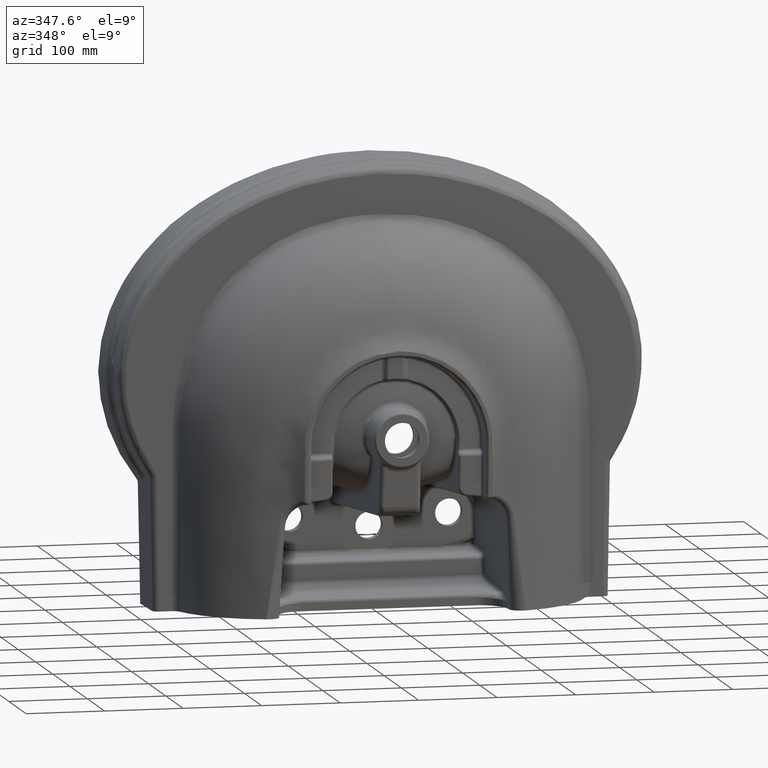
[diagram: clean part render]
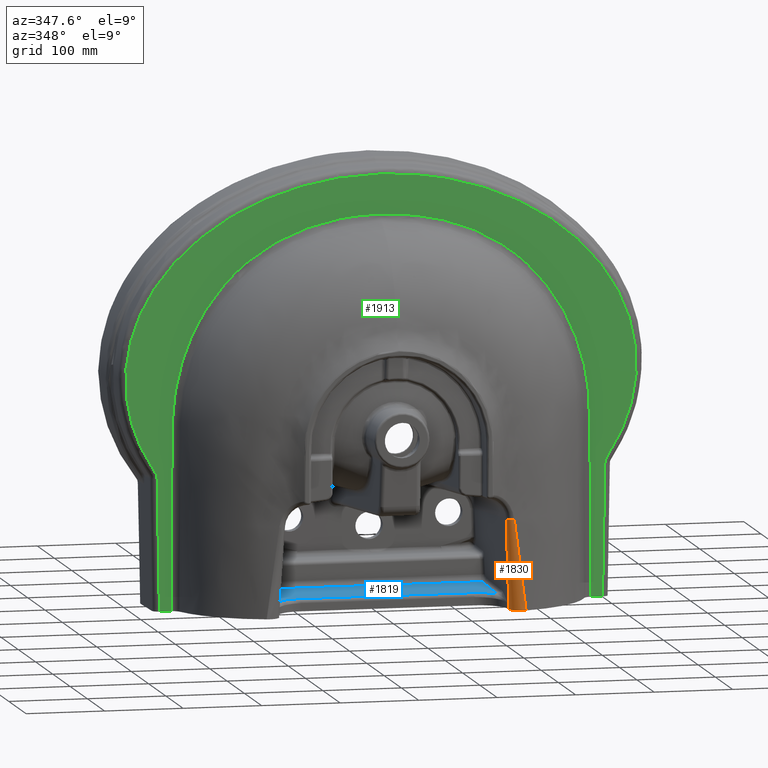
[diagram: same view with three faces highlighted in distinct colors, each labeled with its STEP entity id]
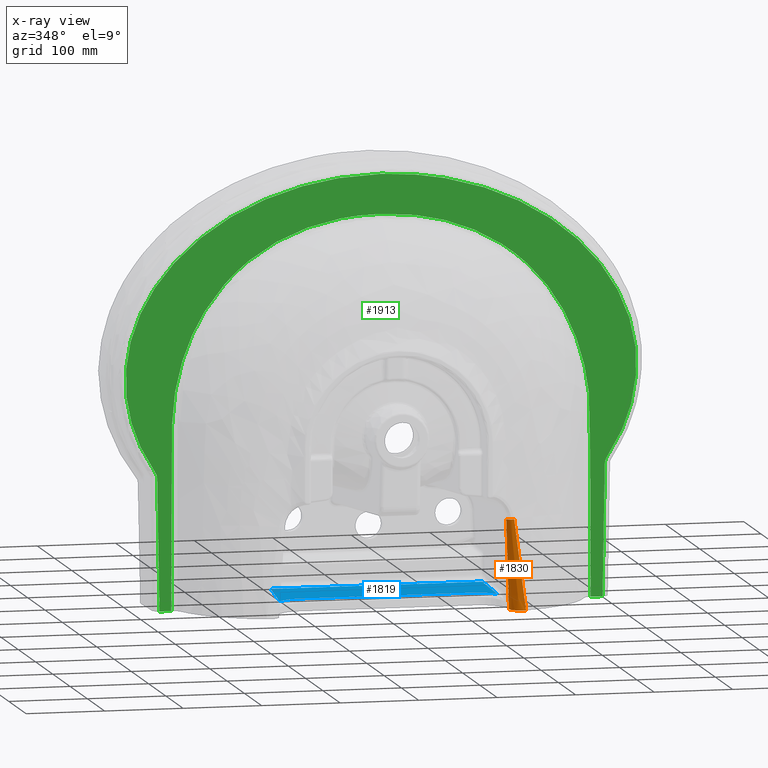
[diagram: x-ray of the same camera — body ghosted, the three highlighted faces saturated]
A machine part, auxiliary view with three faces highlighted in distinct colors.
The next image is the same camera in x-ray (body ghosted, the three faces saturated) — at least one of them is partly hidden behind the body in this view.
Their STEP definitions:

[orange] entity #1830 — the highlighted face is a freeform B-spline surface patch.
#762=(
BOUNDED_SURFACE()
B_SPLINE_SURFACE(3,3,((#23025,#23026,#23027,#23028,#23029,#23030,#23031,
#23032,#23033,#23034),(#23035,#23036,#23037,#23038,#23039,#23040,#23041,
#23042,#23043,#23044),(#23045,#23046,#23047,#23048,#23049,#23050,#23051,
#23052,#23053,#23054),(#23055,#23056,#23057,#23058,#23059,#23060,#23061,
#23062,#23063,#23064)),.UNSPECIFIED.,.F.,.F.,.F.)
B_SPLINE_SURFACE_WITH_KNOTS((4,4),(4,1,1,1,1,1,1,4),(0.,1.),(0.,0.167802733748811,
0.322576298791,0.461073070911718,0.592204922344896,0.731428360898146,0.87335193496553,
1.),.UNSPECIFIED.)
GEOMETRIC_REPRESENTATION_ITEM()
RATIONAL_B_SPLINE_SURFACE(((1.224964134067,1.224964134067,1.224964134067,
1.224964134067,1.224964134067,1.224964134067,1.224964134067,1.224964134067,
1.224964134067,1.224964134067),(0.9250119553111,0.9250119553111,0.9250119553111,
0.9250119553111,0.9250119553111,0.9250119553111,0.9250119553111,0.9250119553111,
0.9250119553111,0.9250119553111),(0.9250119553111,0.9250119553111,0.9250119553111,
0.9250119553111,0.9250119553111,0.9250119553111,0.9250119553111,0.9250119553111,
0.9250119553111,0.9250119553111),(1.224964134067,1.224964134067,1.224964134067,
1.224964134067,1.224964134067,1.224964134067,1.224964134067,1.224964134067,
1.224964134067,1.224964134067)))
REPRESENTATION_ITEM('')
SURFACE()
);
#1146=B_SPLINE_CURVE_WITH_KNOTS('',3,(#18747,#18748,#18749,#18750,#18751,
#18752,#18753,#18754,#18755,#18756,#18757,#18758,#18759,#18760,#18761,#18762,
#18763,#18764,#18765,#18766,#18767,#18768,#18769,#18770,#18771,#18772,#18773,
#18774,#18775,#18776,#18777,#18778,#18779,#18780,#18781,#18782,#18783,#18784,
#18785,#18786,#18787,#18788,#18789,#18790,#18791,#18792,#18793,#18794,#18795),
 .UNSPECIFIED.,.F.,.F.,(4,1,1,1,2,2,1,2,2,1,1,1,2,2,1,1,2,2,1,1,1,2,2,1,
1,1,2,2,1,1,2,2,4),(0.,0.0312499999999971,0.0468749999999957,0.054687499999995,
0.0585937499999949,0.0624999999999948,0.0937499999999947,0.109374999999995,
0.124999999999995,0.187499999999996,0.218749999999996,0.234374999999996,
0.242187499999997,0.249999999999997,0.312499999999998,0.343749999999998,
0.359374999999997,0.374999999999997,0.437499999999994,0.468749999999992,
0.484374999999991,0.492187499999991,0.499999999999991,0.624999999999994,
0.687499999999996,0.718749999999996,0.734374999999997,0.749999999999997,
0.812499999999998,0.843749999999998,0.859374999999998,0.874999999999998,
1.),.UNSPECIFIED.);
#1230=B_SPLINE_CURVE_WITH_KNOTS('',3,(#22784,#22785,#22786,#22787,#22788,
#22789,#22790,#22791,#22792,#22793),.UNSPECIFIED.,.F.,.F.,(4,2,2,2,4),(0.,
0.25,0.5,0.75,1.),.UNSPECIFIED.);
#1233=B_SPLINE_CURVE_WITH_KNOTS('',3,(#23017,#23018,#23019,#23020,#23021,
#23022),.UNSPECIFIED.,.F.,.F.,(4,2,4),(0.,0.5,1.),.UNSPECIFIED.);
#1830=ADVANCED_FACE('',(#2295),#762,.T.);
#2295=FACE_OUTER_BOUND('',#2776,.T.);
#2776=EDGE_LOOP('',(#4193,#4194,#4195,#4196));
#4193=ORIENTED_EDGE('',*,*,#6548,.T.);
#4194=ORIENTED_EDGE('',*,*,#6549,.F.);
#4195=ORIENTED_EDGE('',*,*,#6400,.F.);
#4196=ORIENTED_EDGE('',*,*,#6540,.F.);
#5601=VERTEX_POINT('',#18746);
#5602=VERTEX_POINT('',#18796);
#5682=VERTEX_POINT('',#22783);
#5685=VERTEX_POINT('',#23023);
#6400=EDGE_CURVE('',#5601,#5602,#1146,.T.);
#6540=EDGE_CURVE('',#5682,#5601,#1230,.T.);
#6548=EDGE_CURVE('',#5682,#5685,#1233,.T.);
#6549=EDGE_CURVE('',#5602,#5685,#7173,.T.);
#7173=CIRCLE('',#7386,7.583068045292);
#7386=AXIS2_PLACEMENT_3D('',#23024,#7894,#7895);
#7894=DIRECTION('',(-0.103827573950703,-0.0679699160282218,0.992270086923227));
#7895=DIRECTION('',(-0.993041771684531,-0.0486555755416496,-0.107241198512332));
#18746=CARTESIAN_POINT('',(146.4426951448,-2.325559688682,-224.9999999813));
#18747=CARTESIAN_POINT('',(146.442694252337,-2.3255597355182,-225.000000028072));
#18748=CARTESIAN_POINT('',(146.380238594408,-2.43560419446462,-223.698079604201));
#18749=CARTESIAN_POINT('',(146.279830149559,-2.61277753346392,-221.604755861296));
#18750=CARTESIAN_POINT('',(146.150918287475,-2.84066640081085,-218.916769390486));
#18751=CARTESIAN_POINT('',(146.083520187327,-2.95990749411291,-217.511332295726));
#18752=CARTESIAN_POINT('',(146.054004822455,-3.01214581830565,-216.895835570967));
#18753=CARTESIAN_POINT('',(146.034187809249,-3.04722358965454,-216.482578523063));
#18754=CARTESIAN_POINT('',(146.022673412957,-3.06760779421642,-216.242458574782));
#18755=CARTESIAN_POINT('',(145.946058466316,-3.20325489077508,-214.644725054299));
#18756=CARTESIAN_POINT('',(145.843908505166,-3.38417581402186,-212.514418473602));
#18757=CARTESIAN_POINT('',(145.741763495573,-3.5651839290215,-210.384119062826));
#18758=CARTESIAN_POINT('',(145.673667922857,-3.68587538163299,-208.963921048958));
#18759=CARTESIAN_POINT('',(145.642006000594,-3.74200161135181,-208.303572328129));
#18760=CARTESIAN_POINT('',(145.459846000925,-4.06497304540332,-204.504337812801));
#18761=CARTESIAN_POINT('',(145.255840900559,-4.42586929198221,-200.250297086643));
#18762=CARTESIAN_POINT('',(145.043362023799,-4.80024333299581,-195.821070784203));
#18763=CARTESIAN_POINT('',(144.943504353836,-4.97576245850382,-193.739912935836));
#18764=CARTESIAN_POINT('',(144.90207573137,-5.04848467765037,-192.876585708575));
#18765=CARTESIAN_POINT('',(144.874760543459,-5.09641054303384,-192.307389238156));
#18766=CARTESIAN_POINT('',(144.863473804598,-5.11620620802536,-192.072202599683));
#18767=CARTESIAN_POINT('',(144.723320328572,-5.36187722191097,-189.151906806865));
#18768=CARTESIAN_POINT('',(144.544010757008,-5.67452499022452,-185.417399533199));
#18769=CARTESIAN_POINT('',(144.348049284004,-6.01318194873932,-181.33911016825));
#18770=CARTESIAN_POINT('',(144.26690144425,-6.15272805142045,-179.650979537771));
#18771=CARTESIAN_POINT('',(144.213433028564,-6.24451598791337,-178.538827488292));
#18772=CARTESIAN_POINT('',(144.189232284653,-6.28599398324058,-178.035514868294));
#18773=CARTESIAN_POINT('',(144.047620006905,-6.5282226993604,-175.0908305022));
#18774=CARTESIAN_POINT('',(143.882706610783,-6.80806876884894,-171.663865334035));
#18775=CARTESIAN_POINT('',(143.699094988697,-7.11560616767221,-167.852387429019));
#18776=CARTESIAN_POINT('',(143.609486012669,-7.26463744652217,-165.993310507638));
#18777=CARTESIAN_POINT('',(143.571552916159,-7.3274928330518,-165.206562262288));
#18778=CARTESIAN_POINT('',(143.546368796344,-7.36917083261624,-164.684285433536));
#18779=CARTESIAN_POINT('',(143.535519143767,-7.38710713474885,-164.459300812753));
#18780=CARTESIAN_POINT('',(143.294500786097,-7.78496340897915,-159.461994315098));
#18781=CARTESIAN_POINT('',(142.956535327935,-8.32999571341199,-152.467448934854));
#18782=CARTESIAN_POINT('',(142.566259860581,-8.93673423755649,-144.412978217074));
#18783=CARTESIAN_POINT('',(142.372126518696,-9.23282037520528,-140.412200914643));
#18784=CARTESIAN_POINT('',(142.289141741844,-9.35815376467831,-138.703251654271));
#18785=CARTESIAN_POINT('',(142.233866385456,-9.44136254221159,-137.565212054807));
#18786=CARTESIAN_POINT('',(142.207936971693,-9.48027476336003,-137.031483744392));
#18787=CARTESIAN_POINT('',(142.061565969921,-9.69915642941869,-134.019376605023));
#18788=CARTESIAN_POINT('',(141.887816667759,-9.95556548860939,-130.447281479927));
#18789=CARTESIAN_POINT('',(141.688426973506,-10.2437737458591,-126.354095691072));
#18790=CARTESIAN_POINT('',(141.603685209884,-10.3649482178648,-124.615785750938));
#18791=CARTESIAN_POINT('',(141.547348692467,-10.4452104541953,-123.460448577695));
#18792=CARTESIAN_POINT('',(141.516756212357,-10.4886210935874,-122.833239069292));
#18793=CARTESIAN_POINT('',(141.287192764048,-10.8132554084428,-118.127827708142));
#18794=CARTESIAN_POINT('',(141.081274511219,-11.096255001765,-113.915285412736));
#18795=CARTESIAN_POINT('',(140.873494404058,-11.3736903529822,-109.672788698502));
#18796=CARTESIAN_POINT('',(140.8734944041,-11.37369035298,-109.6727886985));
#22783=CARTESIAN_POINT('',(165.2146465389,-16.05876747466,-225.0000000021));
#22784=CARTESIAN_POINT('',(165.214646265909,-16.0587664004184,-225.));
#22785=CARTESIAN_POINT('',(163.046509644496,-16.6097424307373,-225.));
#22786=CARTESIAN_POINT('',(160.790471183995,-16.6757440554652,-225.));
#22787=CARTESIAN_POINT('',(156.447251037119,-15.8497734535013,-225.));
#22788=CARTESIAN_POINT('',(154.356592738578,-14.9462490908817,-225.));
#22789=CARTESIAN_POINT('',(150.789818502523,-12.3486492757186,-225.));
#22790=CARTESIAN_POINT('',(149.291787306456,-10.6440647221677,-225.));
#22791=CARTESIAN_POINT('',(147.171161938715,-6.72970945611492,-225.));
#22792=CARTESIAN_POINT('',(146.559955466697,-4.55991915908059,-225.));
#22793=CARTESIAN_POINT('',(146.442696403992,-2.32555962259967,-225.));
#23017=CARTESIAN_POINT('',(165.214646265926,-16.0587664004838,-225.000000009759));
#23018=CARTESIAN_POINT('',(162.474021882174,-16.6177548600635,-205.720510874029));
#23019=CARTESIAN_POINT('',(159.720015791523,-17.1151693475282,-186.448710023501));
#23020=CARTESIAN_POINT('',(154.297618325607,-17.9370732299819,-147.881735983285));
#23021=CARTESIAN_POINT('',(151.821161290817,-18.2170208947345,-128.575138323553));
#23022=CARTESIAN_POINT('',(149.666804613506,-18.4722504620406,-109.238920303153));
#23023=CARTESIAN_POINT('',(149.6668046135,-18.47225046204,-109.2389203031));
#23024=CARTESIAN_POINT('',(148.4037970085,-11.00473308663,-108.8595563392));
#23025=CARTESIAN_POINT('',(146.4861411146,-2.26234831553,-225.8921956136));
#23026=CARTESIAN_POINT('',(146.1693952192,-2.722377505435,-219.3888587252));
#23027=CARTESIAN_POINT('',(145.5635790788,-3.637065831077,-206.8887913384));
#23028=CARTESIAN_POINT('',(144.7019256552,-4.964428796162,-189.0235586471));
#23029=CARTESIAN_POINT('',(143.9105520934,-6.164556221426,-172.578435749));
#23030=CARTESIAN_POINT('',(143.1496754984,-7.272031749702,-156.7336062935));
#23031=CARTESIAN_POINT('',(142.3807212832,-8.431023038698,-140.756188055));
#23032=CARTESIAN_POINT('',(141.6145931132,-9.596534108796,-124.9506602381));
#23033=CARTESIAN_POINT('',(141.1063298217,-10.35071571768,-114.5383909936));
#23034=CARTESIAN_POINT('',(140.865685617,-10.7054434364,-109.6278165543));
#23035=CARTESIAN_POINT('',(147.0748096347,-12.48719392639,-226.7270982576));
#23036=CARTESIAN_POINT('',(146.6816621746,-12.66518182205,-220.211845427));
#23037=CARTESIAN_POINT('',(145.9433430132,-13.02480503972,-207.6806135887));
#23038=CARTESIAN_POINT('',(144.9084760767,-13.54174531659,-189.7534865349));
#23039=CARTESIAN_POINT('',(143.9631358185,-13.99456516981,-173.2404037419));
#23040=CARTESIAN_POINT('',(143.0539101093,-14.38992070788,-157.3245038995));
#23041=CARTESIAN_POINT('',(142.2076780098,-14.84977811029,-141.2714861539));
#23042=CARTESIAN_POINT('',(141.4242236862,-15.3561277187,-125.3914804122));
#23043=CARTESIAN_POINT('',(140.9269343678,-15.70340320621,-114.9317448127));
#23044=CARTESIAN_POINT('',(140.6983514143,-15.87373976618,-109.9993469792));
#23045=CARTESIAN_POINT('',(155.3420566924,-18.57723287897,-226.3332550314));
#23046=CARTESIAN_POINT('',(154.6827209739,-18.63496458192,-219.832584581));
#23047=CARTESIAN_POINT('',(153.4318923755,-18.74311527508,-207.3292453254));
#23048=CARTESIAN_POINT('',(151.6616448439,-18.8749735686,-189.4417728618));
#23049=CARTESIAN_POINT('',(150.0418880185,-18.96674160957,-172.9645851743));
#23050=CARTESIAN_POINT('',(148.4889909905,-19.01848906153,-157.0822710223));
#23051=CARTESIAN_POINT('',(147.0541679298,-19.08786767926,-141.0575509379));
#23052=CARTESIAN_POINT('',(145.7509988117,-19.18313023256,-125.200898377));
#23053=CARTESIAN_POINT('',(144.9466451298,-19.25988974782,-114.754428535));
#23054=CARTESIAN_POINT('',(144.583406916,-19.30217889771,-109.8276745761));
#23055=CARTESIAN_POINT('',(165.214776884,-16.0587330817,-224.9999824884));
#23056=CARTESIAN_POINT('',(164.2950076482,-16.24633368486,-218.5296805494));
#23057=CARTESIAN_POINT('',(162.5281517436,-16.59133571894,-206.0928010675));
#23058=CARTESIAN_POINT('',(160.0005658493,-17.04633329355,-188.3174019535));
#23059=CARTESIAN_POINT('',(157.6813678307,-17.42853331948,-171.9535958894));
#23060=CARTESIAN_POINT('',(155.462317118,-17.75759849577,-156.184851515));
#23061=CARTESIAN_POINT('',(153.3599679223,-18.03199847125,-140.271538847));
#23062=CARTESIAN_POINT('',(151.4164769588,-18.26623221637,-124.5189153663));
#23063=CARTESIAN_POINT('',(150.2125895276,-18.40758647431,-114.1366983918));
#23064=CARTESIAN_POINT('',(149.6668970637,-18.47223536898,-109.2389095957));

[blue] entity #1819 — the highlighted planar face has unit normal (0, -0.0698, 0.9976).
#327=PLANE('',#7374);
#424=LINE('',#22228,#573);
#425=LINE('',#22372,#574);
#573=VECTOR('',#7856,1.);
#574=VECTOR('',#7861,1.);
#1215=B_SPLINE_CURVE_WITH_KNOTS('',3,(#22310,#22311,#22312,#22313),
 .UNSPECIFIED.,.F.,.F.,(4,4),(0.,1.),.UNSPECIFIED.);
#1216=B_SPLINE_CURVE_WITH_KNOTS('',3,(#22315,#22316,#22317,#22318,#22319,
#22320,#22321,#22322,#22323,#22324,#22325,#22326,#22327,#22328,#22329,#22330,
#22331,#22332,#22333,#22334,#22335,#22336,#22337,#22338,#22339,#22340,#22341,
#22342,#22343,#22344,#22345,#22346,#22347,#22348,#22349,#22350,#22351,#22352,
#22353,#22354,#22355,#22356,#22357,#22358,#22359,#22360,#22361,#22362,#22363,
#22364,#22365,#22366,#22367,#22368,#22369,#22370),.UNSPECIFIED.,.F.,.F.,
(4,2,2,2,2,2,2,2,2,2,2,2,1,2,2,2,2,2,2,2,2,2,1,2,2,2,2,2,4),(0.,0.0625000000000069,
0.0937500000000104,0.125000000000014,0.156250000000017,0.187500000000021,
0.218750000000024,0.250000000000028,0.312500000000034,0.375000000000041,
0.500000000000054,0.531250000000057,0.546875000000058,0.554687500000059,
0.56250000000006,0.593750000000054,0.609375000000051,0.617187500000049,
0.625000000000048,0.750000000000029,0.812500000000021,0.843750000000018,
0.859375000000017,0.867187500000016,0.875000000000015,0.906250000000013,
0.92187500000001,0.937500000000008,1.),.UNSPECIFIED.);
#1217=B_SPLINE_CURVE_WITH_KNOTS('',3,(#22374,#22375,#22376,#22377,#22378,
#22379,#22380,#22381,#22382,#22383,#22384,#22385,#22386,#22387,#22388,#22389,
#22390,#22391,#22392,#22393,#22394,#22395,#22396,#22397,#22398,#22399,#22400,
#22401,#22402,#22403,#22404,#22405,#22406,#22407,#22408,#22409,#22410,#22411,
#22412,#22413,#22414,#22415,#22416,#22417,#22418,#22419,#22420,#22421,#22422,
#22423),.UNSPECIFIED.,.F.,.F.,(4,2,2,2,2,2,2,2,2,2,2,2,2,2,2,2,2,2,2,2,
2,2,2,2,4),(0.,0.0625000000000186,0.125000000000037,0.250000000000074,0.281250000000083,
0.312500000000091,0.375000000000111,0.390625000000115,0.398437500000118,
0.406250000000121,0.437500000000113,0.468750000000106,0.500000000000099,
0.625000000000074,0.640625000000071,0.656250000000068,0.687500000000062,
0.750000000000051,0.781250000000046,0.812500000000041,0.87500000000003,
0.890625000000026,0.906250000000023,0.937500000000016,1.),.UNSPECIFIED.);
#1218=B_SPLINE_CURVE_WITH_KNOTS('',3,(#22425,#22426,#22427,#22428),
 .UNSPECIFIED.,.F.,.F.,(4,4),(0.,1.),.UNSPECIFIED.);
#1819=ADVANCED_FACE('',(#2284),#327,.T.);
#2284=FACE_OUTER_BOUND('',#2765,.T.);
#2765=EDGE_LOOP('',(#4133,#4134,#4135,#4136,#4137,#4138));
#4133=ORIENTED_EDGE('',*,*,#6516,.F.);
#4134=ORIENTED_EDGE('',*,*,#6517,.F.);
#4135=ORIENTED_EDGE('',*,*,#6518,.F.);
#4136=ORIENTED_EDGE('',*,*,#6519,.F.);
#4137=ORIENTED_EDGE('',*,*,#6511,.F.);
#4138=ORIENTED_EDGE('',*,*,#6515,.F.);
#5661=VERTEX_POINT('',#22161);
#5662=VERTEX_POINT('',#22229);
#5663=VERTEX_POINT('',#22309);
#5664=VERTEX_POINT('',#22371);
#5665=VERTEX_POINT('',#22373);
#5666=VERTEX_POINT('',#22424);
#6511=EDGE_CURVE('',#5662,#5661,#424,.T.);
#6515=EDGE_CURVE('',#5663,#5662,#1215,.T.);
#6516=EDGE_CURVE('',#5664,#5663,#1216,.T.);
#6517=EDGE_CURVE('',#5665,#5664,#425,.T.);
#6518=EDGE_CURVE('',#5666,#5665,#1217,.T.);
#6519=EDGE_CURVE('',#5661,#5666,#1218,.T.);
#7374=AXIS2_PLACEMENT_3D('',#22429,#7862,#7863);
#7856=DIRECTION('',(1.,0.,0.));
#7861=DIRECTION('',(-1.,0.,0.));
#7862=DIRECTION('',(0.,-0.0697564737441317,0.997564050259824));
#7863=DIRECTION('',(0.,-0.997564050259824,-0.0697564737441317));
#22161=CARTESIAN_POINT('',(134.826822921,99.50588864518,-205.6333612136));
#22228=CARTESIAN_POINT('',(-142.0175649187,99.5058952721544,-205.633455983208));
#22229=CARTESIAN_POINT('',(-134.826822921,99.50588863326,-205.6333610426));
#22309=CARTESIAN_POINT('',(-138.7140133822,30.26959319388,-210.4749502529));
#22310=CARTESIAN_POINT('',(-138.714013382366,30.2695917746847,-210.474929957329));
#22311=CARTESIAN_POINT('',(-137.41828322857,53.348359607177,-208.86110529933));
#22312=CARTESIAN_POINT('',(-136.122553074773,76.4271274396653,-207.247280641276));
#22313=CARTESIAN_POINT('',(-134.826822920977,99.5058952721498,-205.633455983165));
#22315=CARTESIAN_POINT('',(-110.590954361281,41.7453155479088,-209.672527697815));
#22316=CARTESIAN_POINT('',(-111.046848433731,41.7452224048725,-209.672555561196));
#22317=CARTESIAN_POINT('',(-111.672877028388,41.7386763711632,-209.673034270685));
#22318=CARTESIAN_POINT('',(-112.865698993236,41.6832978952637,-209.676913987522));
#22319=CARTESIAN_POINT('',(-113.359775445581,41.6522521137299,-209.679082420859));
#22320=CARTESIAN_POINT('',(-114.121141810668,41.5925862755752,-209.68324513956));
#22321=CARTESIAN_POINT('',(-114.43294881041,41.5628401189034,-209.685318948007));
#22322=CARTESIAN_POINT('',(-114.919426772219,41.5131719322859,-209.688781582989));
#22323=CARTESIAN_POINT('',(-115.058297407733,41.497813689844,-209.689852161339));
#22324=CARTESIAN_POINT('',(-115.521785383947,41.4431733588291,-209.693661199404));
#22325=CARTESIAN_POINT('',(-115.815172324973,41.4066615249012,-209.696206421852));
#22326=CARTESIAN_POINT('',(-116.523996858671,41.3070465795645,-209.70315245899));
#22327=CARTESIAN_POINT('',(-117.007102014832,41.2318083403151,-209.708400129606));
#22328=CARTESIAN_POINT('',(-117.739084824376,41.1060261959181,-209.717177315869));
#22329=CARTESIAN_POINT('',(-118.080388832634,41.0421603601221,-209.721635893294));
#22330=CARTESIAN_POINT('',(-119.030951202979,40.8532804765212,-209.734826822824));
#22331=CARTESIAN_POINT('',(-119.55456666496,40.7365878148605,-209.742981223677));
#22332=CARTESIAN_POINT('',(-120.781528176241,40.4350274500067,-209.764061039));
#22333=CARTESIAN_POINT('',(-121.411099006269,40.2650943899621,-209.775943343187));
#22334=CARTESIAN_POINT('',(-123.343633791679,39.6899647444729,-209.816165343952));
#22335=CARTESIAN_POINT('',(-124.554088463069,39.2625213826453,-209.846066502141));
#22336=CARTESIAN_POINT('',(-126.060936896045,38.6488638590973,-209.888989314002));
#22337=CARTESIAN_POINT('',(-126.360812696272,38.5224019575369,-209.897834609035));
#22338=CARTESIAN_POINT('',(-126.808244465899,38.3271589680308,-209.911490247136));
#22339=CARTESIAN_POINT('',(-127.031364689783,38.2281494380082,-209.918415021384));
#22340=CARTESIAN_POINT('',(-127.25356656597,38.1270710853044,-209.925484303586));
#22341=CARTESIAN_POINT('',(-127.401494369277,38.0592274231702,-209.930229157987));
#22342=CARTESIAN_POINT('',(-127.510588489496,38.0086533607876,-209.933766172245));
#22343=CARTESIAN_POINT('',(-127.703199122431,37.9188732904314,-209.940045116464));
#22344=CARTESIAN_POINT('',(-127.92731106177,37.8135460931195,-209.947411308299));
#22345=CARTESIAN_POINT('',(-128.365666360518,37.5994853239115,-209.962381373526));
#22346=CARTESIAN_POINT('',(-128.5287961498,37.518749538291,-209.968027457143));
#22347=CARTESIAN_POINT('',(-128.798456369751,37.3825208480892,-209.97755415092));
#22348=CARTESIAN_POINT('',(-128.892502582688,37.3345882489052,-209.980906130704));
#22349=CARTESIAN_POINT('',(-129.088803736643,37.2334758296992,-209.987976974613));
#22350=CARTESIAN_POINT('',(-129.226745778419,37.1615246608748,-209.993008507805));
#22351=CARTESIAN_POINT('',(-130.427126120936,36.530126890372,-210.037161772383));
#22352=CARTESIAN_POINT('',(-131.568440541057,35.8589321806258,-210.084094140164));
#22353=CARTESIAN_POINT('',(-133.192128735684,34.794392801409,-210.158529431188));
#22354=CARTESIAN_POINT('',(-133.72475127497,34.4264896461088,-210.184254016943));
#22355=CARTESIAN_POINT('',(-134.509781310521,33.855644963055,-210.22416922787));
#22356=CARTESIAN_POINT('',(-134.769139190248,33.662196922674,-210.237695802481));
#22357=CARTESIAN_POINT('',(-135.154581599254,33.3673578484404,-210.258312188192));
#22358=CARTESIAN_POINT('',(-135.346405046283,33.2187724139671,-210.268701946688));
#22359=CARTESIAN_POINT('',(-135.536862925219,33.0684565516195,-210.279212757707));
#22360=CARTESIAN_POINT('',(-135.663529280476,32.9678634845146,-210.286246721665));
#22361=CARTESIAN_POINT('',(-135.764435515165,32.887041348828,-210.291898216177));
#22362=CARTESIAN_POINT('',(-135.890939126481,32.7853231186167,-210.299010878134));
#22363=CARTESIAN_POINT('',(-136.067947559361,32.6425754451162,-210.308992527979));
#22364=CARTESIAN_POINT('',(-136.442389872335,32.3306678675151,-210.330802833482));
#22365=CARTESIAN_POINT('',(-136.585315302189,32.2103507240075,-210.339216089983));
#22366=CARTESIAN_POINT('',(-136.906040873418,31.9354901866548,-210.35843594961));
#22367=CARTESIAN_POINT('',(-137.109439779809,31.7582145714109,-210.370832130829));
#22368=CARTESIAN_POINT('',(-137.953277954825,31.0088720314223,-210.423230815492));
#22369=CARTESIAN_POINT('',(-138.423775967959,30.5536003037018,-210.455066577851));
#22370=CARTESIAN_POINT('',(-138.714013382613,30.2695915308305,-210.474926464221));
#22371=CARTESIAN_POINT('',(-110.5909543631,41.74531283551,-209.6724888751));
#22372=CARTESIAN_POINT('',(112.6647953329,41.7453114787359,-209.672469463882));
#22373=CARTESIAN_POINT('',(110.590954364,41.74531283652,-209.6724888811));
#22374=CARTESIAN_POINT('',(138.714019629478,30.2695709938225,-210.474927900069));
#22375=CARTESIAN_POINT('',(138.470392210221,30.5079705911617,-210.458257327316));
#22376=CARTESIAN_POINT('',(138.029765299457,30.9372343827137,-210.428240201593));
#22377=CARTESIAN_POINT('',(136.703794319534,32.1216749172455,-210.345416692938));
#22378=CARTESIAN_POINT('',(136.226602890364,32.5162055741586,-210.317828923941));
#22379=CARTESIAN_POINT('',(134.800026078651,33.6608190665358,-210.237791774305));
#22380=CARTESIAN_POINT('',(133.732641330075,34.440330813036,-210.183286364066));
#22381=CARTESIAN_POINT('',(132.379382682473,35.3274384938744,-210.121257523528));
#22382=CARTESIAN_POINT('',(132.106579561849,35.5015869667104,-210.109080584475));
#22383=CARTESIAN_POINT('',(131.556837104514,35.8432387846028,-210.085191193597));
#22384=CARTESIAN_POINT('',(131.401509283209,35.9371690018023,-210.078623245796));
#22385=CARTESIAN_POINT('',(130.694254532004,36.3582782248232,-210.049177492825));
#22386=CARTESIAN_POINT('',(130.116306698952,36.6901480349434,-210.025971417658));
#22387=CARTESIAN_POINT('',(129.250924560211,37.1492976765923,-209.99386355976));
#22388=CARTESIAN_POINT('',(129.070693704217,37.2433122731553,-209.987289135128));
#22389=CARTESIAN_POINT('',(128.789413563161,37.3871481317958,-209.97723055806));
#22390=CARTESIAN_POINT('',(128.785206864061,37.3891384565796,-209.977091363613));
#22391=CARTESIAN_POINT('',(128.743861664068,37.4101122786759,-209.975624634384));
#22392=CARTESIAN_POINT('',(128.718958912552,37.4227244175246,-209.974742648258));
#22393=CARTESIAN_POINT('',(128.57322756377,37.4962788795745,-209.969598857399));
#22394=CARTESIAN_POINT('',(128.388829379966,37.5888866026033,-209.963122613246));
#22395=CARTESIAN_POINT('',(127.881328203085,37.8353181835918,-209.945888641153));
#22396=CARTESIAN_POINT('',(127.558209510219,37.9891514925356,-209.93513025573));
#22397=CARTESIAN_POINT('',(126.768267821374,38.346883572323,-209.910110856978));
#22398=CARTESIAN_POINT('',(126.263142711725,38.5663771893324,-209.894758913843));
#22399=CARTESIAN_POINT('',(123.745311846432,39.5924488410124,-209.82298944723));
#22400=CARTESIAN_POINT('',(122.384415501671,39.9794190739434,-209.795921703994));
#22401=CARTESIAN_POINT('',(121.68676053351,40.1812455096134,-209.78180757838));
#22402=CARTESIAN_POINT('',(121.620661045093,40.2001247806549,-209.780487345585));
#22403=CARTESIAN_POINT('',(121.511402234453,40.2311459172943,-209.778318055022));
#22404=CARTESIAN_POINT('',(121.321418079391,40.284554129275,-209.774583323436));
#22405=CARTESIAN_POINT('',(120.889933480799,40.4024683965821,-209.766338340399));
#22406=CARTESIAN_POINT('',(120.594804106153,40.4797204051582,-209.760937166637));
#22407=CARTESIAN_POINT('',(119.686845533408,40.7059696655085,-209.745121078137));
#22408=CARTESIAN_POINT('',(119.051428028082,40.8494887750732,-209.735091540071));
#22409=CARTESIAN_POINT('',(118.052812610328,41.0475579750745,-209.721258975361));
#22410=CARTESIAN_POINT('',(117.712359476455,41.1107014983619,-209.716851042054));
#22411=CARTESIAN_POINT('',(117.016329554067,41.2301394838807,-209.708516611749));
#22412=CARTESIAN_POINT('',(116.5931101439,41.2967042865218,-209.703873727807));
#22413=CARTESIAN_POINT('',(115.50747719354,41.4509763094157,-209.693116201768));
#22414=CARTESIAN_POINT('',(114.880578345455,41.5201238763192,-209.688297286426));
#22415=CARTESIAN_POINT('',(114.221116492621,41.5820687164656,-209.68397815692));
#22416=CARTESIAN_POINT('',(114.095422458236,41.593211638013,-209.68320110694));
#22417=CARTESIAN_POINT('',(113.856473976506,41.6133597018816,-209.681795840561));
#22418=CARTESIAN_POINT('',(113.530036991665,41.6390536405457,-209.68000332409));
#22419=CARTESIAN_POINT('',(112.83281863473,41.6859423150214,-209.676729330941));
#22420=CARTESIAN_POINT('',(112.422370785633,41.7055279994662,-209.675357997019));
#22421=CARTESIAN_POINT('',(111.355403495943,41.7444349295429,-209.672622990888));
#22422=CARTESIAN_POINT('',(110.863342217036,41.7452598876741,-209.67254436239));
#22423=CARTESIAN_POINT('',(110.590954362181,41.7453155497501,-209.672527715745));
#22424=CARTESIAN_POINT('',(138.7140196291,30.26957265589,-210.4749516742));
#22425=CARTESIAN_POINT('',(134.826822921,99.5058952721127,-205.633455983153));
#22426=CARTESIAN_POINT('',(136.122555157099,76.4271205939887,-207.247281119957));
#22427=CARTESIAN_POINT('',(137.418287393199,53.3483459158618,-208.861106256718));
#22428=CARTESIAN_POINT('',(138.714019629298,30.269571237732,-210.474931393436));
#22429=CARTESIAN_POINT('',(0.,37.05323870887,-210.000571154));

[green] entity #1913 — the highlighted planar face has unit normal (0, 1, 0).
#334=PLANE('',#7411);
#427=LINE('',#22739,#576);
#430=LINE('',#22765,#579);
#439=LINE('',#30382,#588);
#440=LINE('',#30650,#589);
#576=VECTOR('',#7871,1.);
#579=VECTOR('',#7880,1.);
#588=VECTOR('',#7949,1.);
#589=VECTOR('',#7950,1.);
#1347=B_SPLINE_CURVE_WITH_KNOTS('',3,(#29980,#29981,#29982,#29983,#29984,
#29985,#29986,#29987,#29988,#29989,#29990,#29991,#29992,#29993,#29994,#29995,
#29996,#29997,#29998,#29999,#30000,#30001,#30002,#30003,#30004,#30005,#30006,
#30007,#30008,#30009,#30010,#30011,#30012,#30013,#30014,#30015,#30016,#30017,
#30018,#30019,#30020,#30021,#30022,#30023,#30024,#30025,#30026,#30027,#30028,
#30029,#30030,#30031,#30032,#30033,#30034,#30035,#30036,#30037,#30038,#30039,
#30040,#30041,#30042,#30043,#30044),.UNSPECIFIED.,.F.,.F.,(4,1,1,1,1,1,
1,1,1,1,1,1,1,1,1,1,1,1,1,1,1,1,1,1,1,1,1,1,1,1,1,1,1,1,1,1,1,1,1,1,1,1,
1,1,1,1,1,1,1,1,1,1,1,1,1,1,1,1,1,1,1,1,4),(0.,0.01612903225806,0.03225806451613,
0.04838709677419,0.06451612903226,0.08064516129032,0.09677419354839,0.1129032258065,
0.1290322580645,0.1451612903226,0.1612903225806,0.1774193548387,0.1935483870968,
0.2096774193548,0.2258064516129,0.241935483871,0.258064516129,0.2741935483871,
0.2903225806452,0.3064516129032,0.3225806451613,0.3387096774194,0.3548387096774,
0.3709677419355,0.3870967741935,0.4032258064516,0.4193548387097,0.4354838709677,
0.4516129032258,0.4677419354839,0.4838709677419,0.5,0.5161290322581,0.5322580645161,
0.5483870967742,0.5645161290323,0.5806451612903,0.5967741935484,0.6129032258065,
0.6290322580645,0.6451612903226,0.6612903225806,0.6774193548387,0.6935483870968,
0.7096774193548,0.7258064516129,0.741935483871,0.758064516129,0.7741935483871,
0.7903225806452,0.8064516129032,0.8225806451613,0.8387096774194,0.8548387096774,
0.8709677419355,0.8870967741935,0.9032258064516,0.9193548387097,0.9354838709677,
0.9516129032258,0.9677419354839,0.9838709677419,1.),.UNSPECIFIED.);
#1348=B_SPLINE_CURVE_WITH_KNOTS('',3,(#30317,#30318,#30319,#30320,#30321,
#30322,#30323,#30324,#30325,#30326,#30327,#30328,#30329,#30330,#30331,#30332,
#30333,#30334,#30335,#30336,#30337,#30338,#30339,#30340,#30341,#30342,#30343,
#30344,#30345,#30346,#30347,#30348,#30349,#30350,#30351,#30352,#30353,#30354,
#30355,#30356,#30357,#30358,#30359,#30360,#30361,#30362,#30363,#30364,#30365,
#30366,#30367,#30368,#30369,#30370,#30371,#30372,#30373,#30374,#30375,#30376,
#30377,#30378,#30379,#30380,#30381),.UNSPECIFIED.,.F.,.F.,(4,1,1,1,1,1,
1,1,1,1,1,1,1,1,1,1,1,1,1,1,1,1,1,1,1,1,1,1,1,1,1,1,1,1,1,1,1,1,1,1,1,1,
1,1,1,1,1,1,1,1,1,1,1,1,1,1,1,1,1,1,1,1,4),(0.,0.01612903225806,0.03225806451613,
0.04838709677419,0.06451612903226,0.08064516129032,0.09677419354839,0.1129032258065,
0.1290322580645,0.1451612903226,0.1612903225806,0.1774193548387,0.1935483870968,
0.2096774193548,0.2258064516129,0.241935483871,0.258064516129,0.2741935483871,
0.2903225806452,0.3064516129032,0.3225806451613,0.3387096774194,0.3548387096774,
0.3709677419355,0.3870967741935,0.4032258064516,0.4193548387097,0.4354838709677,
0.4516129032258,0.4677419354839,0.4838709677419,0.5,0.5161290322581,0.5322580645161,
0.5483870967742,0.5645161290323,0.5806451612903,0.5967741935484,0.6129032258065,
0.6290322580645,0.6451612903226,0.6612903225806,0.6774193548387,0.6935483870968,
0.7096774193548,0.7258064516129,0.741935483871,0.758064516129,0.7741935483871,
0.7903225806452,0.8064516129032,0.8225806451613,0.8387096774194,0.8548387096774,
0.8709677419355,0.8870967741935,0.9032258064516,0.9193548387097,0.9354838709677,
0.9516129032258,0.9677419354839,0.9838709677419,1.),.UNSPECIFIED.);
#1349=B_SPLINE_CURVE_WITH_KNOTS('',3,(#30384,#30385,#30386,#30387),
 .UNSPECIFIED.,.F.,.F.,(4,4),(0.,1.),.UNSPECIFIED.);
#1350=B_SPLINE_CURVE_WITH_KNOTS('',3,(#30389,#30390,#30391,#30392,#30393,
#30394,#30395,#30396,#30397,#30398,#30399,#30400,#30401,#30402,#30403,#30404,
#30405,#30406,#30407,#30408,#30409,#30410,#30411,#30412,#30413,#30414,#30415,
#30416,#30417,#30418,#30419,#30420,#30421,#30422,#30423,#30424,#30425,#30426,
#30427,#30428,#30429,#30430,#30431,#30432,#30433,#30434,#30435,#30436,#30437,
#30438,#30439,#30440,#30441,#30442,#30443,#30444,#30445,#30446,#30447,#30448,
#30449,#30450,#30451,#30452,#30453,#30454,#30455,#30456,#30457,#30458,#30459,
#30460,#30461,#30462,#30463,#30464,#30465,#30466,#30467,#30468,#30469,#30470,
#30471,#30472,#30473,#30474,#30475,#30476,#30477,#30478,#30479,#30480,#30481,
#30482,#30483,#30484,#30485,#30486,#30487,#30488,#30489,#30490,#30491,#30492,
#30493,#30494,#30495,#30496,#30497,#30498,#30499,#30500,#30501,#30502,#30503,
#30504,#30505,#30506,#30507,#30508,#30509,#30510,#30511),.UNSPECIFIED.,
 .F.,.F.,(4,1,1,1,1,2,2,1,2,2,1,1,1,2,2,1,1,1,1,2,2,1,1,1,2,2,1,2,2,2,2,
1,1,2,2,1,2,2,1,1,2,2,1,1,1,2,2,1,1,1,1,1,2,2,1,1,1,1,1,2,2,1,1,1,1,1,2,
2,1,1,1,1,2,2,1,1,1,1,2,2,1,1,1,1,2,2,4),(0.,0.0312500000000017,0.0468750000000024,
0.0546875000000027,0.0585937500000028,0.0605468750000029,0.0625000000000029,
0.093750000000002,0.109375000000002,0.125000000000001,0.15625,0.171875,
0.179687499999999,0.183593749999999,0.187499999999999,0.218749999999998,
0.234374999999998,0.242187499999998,0.246093749999998,0.248046874999998,
0.249999999999998,0.281249999999997,0.296874999999997,0.304687499999996,
0.308593749999996,0.312499999999996,0.343749999999996,0.359374999999996,
0.374999999999996,0.406249999999996,0.437499999999996,0.468749999999997,
0.484374999999997,0.492187499999997,0.499999999999997,0.531249999999996,
0.546874999999996,0.562499999999996,0.593749999999995,0.609374999999995,
0.617187499999995,0.624999999999994,0.656249999999994,0.671874999999993,
0.679687499999993,0.683593749999993,0.687499999999993,0.718749999999992,
0.734374999999992,0.742187499999992,0.746093749999992,0.748046874999992,
0.749023437499992,0.749999999999992,0.781249999999992,0.796874999999992,
0.804687499999993,0.808593749999993,0.810546874999993,0.811523437499993,
0.812499999999993,0.843749999999994,0.859374999999994,0.867187499999995,
0.871093749999995,0.873046874999995,0.874023437499995,0.874999999999995,
0.890624999999995,0.898437499999996,0.902343749999996,0.904296874999996,
0.905273437499996,0.906249999999996,0.921874999999997,0.929687499999997,
0.933593749999997,0.935546874999997,0.936523437499997,0.937499999999997,
0.953124999999998,0.960937499999998,0.964843749999998,0.966796874999998,
0.967773437499999,0.968749999999999,1.),.UNSPECIFIED.);
#1351=B_SPLINE_CURVE_WITH_KNOTS('',3,(#30513,#30514,#30515,#30516,#30517,
#30518,#30519,#30520,#30521,#30522,#30523,#30524,#30525,#30526,#30527,#30528,
#30529,#30530,#30531,#30532,#30533,#30534,#30535,#30536,#30537,#30538,#30539,
#30540,#30541,#30542,#30543,#30544,#30545,#30546,#30547,#30548,#30549,#30550,
#30551,#30552,#30553,#30554,#30555,#30556,#30557,#30558,#30559,#30560,#30561,
#30562,#30563,#30564,#30565,#30566,#30567,#30568,#30569,#30570,#30571,#30572,
#30573,#30574,#30575,#30576,#30577,#30578,#30579,#30580,#30581,#30582,#30583,
#30584,#30585,#30586,#30587,#30588,#30589,#30590,#30591,#30592,#30593,#30594,
#30595,#30596,#30597,#30598,#30599,#30600,#30601,#30602,#30603,#30604,#30605,
#30606,#30607,#30608,#30609,#30610,#30611,#30612,#30613,#30614,#30615,#30616,
#30617,#30618,#30619,#30620,#30621,#30622,#30623,#30624,#30625,#30626,#30627,
#30628,#30629,#30630,#30631,#30632,#30633,#30634,#30635,#30636,#30637,#30638,
#30639,#30640,#30641,#30642,#30643),.UNSPECIFIED.,.F.,.F.,(4,1,1,1,1,2,
2,1,1,1,1,2,2,1,1,1,1,2,2,1,1,1,2,2,1,2,2,1,1,1,2,2,1,1,1,2,2,1,1,1,2,2,
1,1,1,2,2,1,1,2,2,1,2,2,1,2,2,2,2,2,2,1,1,2,2,1,1,1,1,2,2,1,1,1,1,2,2,2,
2,1,1,1,2,2,1,2,2,1,4),(0.,0.0156250000000005,0.0234375000000007,0.0273437500000008,
0.0292968750000009,0.0302734375000009,0.0312500000000009,0.0468750000000011,
0.0546875000000012,0.0585937500000012,0.0605468750000012,0.0615234375000012,
0.0625000000000012,0.0781250000000013,0.0859375000000013,0.0898437500000013,
0.0917968750000013,0.0927734375000013,0.0937500000000013,0.109375000000001,
0.117187500000001,0.121093750000001,0.123046875000001,0.125000000000001,
0.140625,0.1484375,0.15625,0.171874999999999,0.179687499999999,0.183593749999999,
0.185546874999999,0.187499999999999,0.203124999999998,0.210937499999998,
0.214843749999997,0.216796874999997,0.218749999999997,0.234374999999996,
0.242187499999996,0.246093749999996,0.248046874999996,0.249999999999996,
0.281249999999996,0.296874999999997,0.304687499999997,0.308593749999997,
0.312499999999997,0.343749999999996,0.359374999999996,0.367187499999996,
0.374999999999996,0.406249999999997,0.421874999999997,0.437499999999997,
0.468749999999998,0.484374999999998,0.499999999999999,0.562499999999999,
0.59375,0.625,0.65625,0.671875,0.6796875,0.68359375,0.6875,0.71875,0.734375000000001,
0.742187500000001,0.746093750000001,0.748046875000001,0.750000000000001,
0.781250000000001,0.796875000000001,0.804687500000001,0.808593750000001,
0.810546875000001,0.812500000000001,0.843750000000001,0.875000000000002,
0.906250000000002,0.921875000000002,0.929687500000002,0.933593750000002,
0.937500000000002,0.968750000000001,0.976562500000001,0.98046875,0.984375,
1.),.UNSPECIFIED.);
#1352=B_SPLINE_CURVE_WITH_KNOTS('',3,(#30645,#30646,#30647,#30648),
 .UNSPECIFIED.,.F.,.F.,(4,4),(0.,1.),.UNSPECIFIED.);
#1913=ADVANCED_FACE('',(#2378),#334,.F.);
#2378=FACE_OUTER_BOUND('',#2859,.T.);
#2859=EDGE_LOOP('',(#4557,#4558,#4559,#4560,#4561,#4562,#4563,#4564,#4565,
#4566));
#4557=ORIENTED_EDGE('',*,*,#6529,.F.);
#4558=ORIENTED_EDGE('',*,*,#6715,.T.);
#4559=ORIENTED_EDGE('',*,*,#6716,.T.);
#4560=ORIENTED_EDGE('',*,*,#6537,.T.);
#4561=ORIENTED_EDGE('',*,*,#6717,.T.);
#4562=ORIENTED_EDGE('',*,*,#6718,.T.);
#4563=ORIENTED_EDGE('',*,*,#6719,.T.);
#4564=ORIENTED_EDGE('',*,*,#6720,.T.);
#4565=ORIENTED_EDGE('',*,*,#6721,.T.);
#4566=ORIENTED_EDGE('',*,*,#6722,.T.);
#5671=VERTEX_POINT('',#22738);
#5672=VERTEX_POINT('',#22740);
#5679=VERTEX_POINT('',#22764);
#5680=VERTEX_POINT('',#22766);
#5769=VERTEX_POINT('',#29979);
#5770=VERTEX_POINT('',#30383);
#5771=VERTEX_POINT('',#30388);
#5772=VERTEX_POINT('',#30512);
#5773=VERTEX_POINT('',#30644);
#5774=VERTEX_POINT('',#30649);
#6529=EDGE_CURVE('',#5671,#5672,#427,.T.);
#6537=EDGE_CURVE('',#5680,#5679,#430,.T.);
#6715=EDGE_CURVE('',#5671,#5769,#1347,.T.);
#6716=EDGE_CURVE('',#5769,#5680,#1348,.T.);
#6717=EDGE_CURVE('',#5679,#5770,#439,.T.);
#6718=EDGE_CURVE('',#5770,#5771,#1349,.T.);
#6719=EDGE_CURVE('',#5771,#5772,#1350,.T.);
#6720=EDGE_CURVE('',#5772,#5773,#1351,.T.);
#6721=EDGE_CURVE('',#5773,#5774,#1352,.T.);
#6722=EDGE_CURVE('',#5774,#5672,#440,.T.);
#7411=AXIS2_PLACEMENT_3D('',#30651,#7951,#7952);
#7871=DIRECTION('',(-1.,-5.589523695181E-012,0.));
#7880=DIRECTION('',(1.,-5.1390893328E-012,0.));
#7949=DIRECTION('',(0.0174524131949506,-2.08981727528707E-008,0.999847695038436));
#7950=DIRECTION('',(0.0174524065525196,3.23960422050993E-008,-0.999847695154379));
#7951=DIRECTION('',(0.,1.,0.));
#7952=DIRECTION('',(-1.,0.,0.));
#22738=CARTESIAN_POINT('',(-267.0934794786,73.0000000002075,-225.));
#22739=CARTESIAN_POINT('',(-267.0934794786,73.00000000008,-225.));
#22740=CARTESIAN_POINT('',(-282.205557901346,72.9999999999989,-225.));
#22764=CARTESIAN_POINT('',(282.205557901291,73.0000000000006,-225.));
#22765=CARTESIAN_POINT('',(267.0934794786,73.00000000008,-225.));
#22766=CARTESIAN_POINT('',(267.0934794786,73.0000000001925,-225.));
#29979=CARTESIAN_POINT('',(-3.722311809475E-013,73.00000011353,266.2901602595));
#29980=CARTESIAN_POINT('',(-267.0934794786,73.00000000008,-225.));
#29981=CARTESIAN_POINT('',(-267.0655536151,73.0000000008,-218.1900067896));
#29982=CARTESIAN_POINT('',(-267.0121546796,72.99999999963,-205.0892761182));
#29983=CARTESIAN_POINT('',(-266.939433152,73.0000000001,-187.0519150573));
#29984=CARTESIAN_POINT('',(-266.8732272814,72.99999999997,-170.460389152));
#29985=CARTESIAN_POINT('',(-266.8128658847,73.00000000001,-155.2134647534));
#29986=CARTESIAN_POINT('',(-266.7576568514,73.,-141.1920196425));
#29987=CARTESIAN_POINT('',(-266.7070746747,73.,-128.2819096562));
#29988=CARTESIAN_POINT('',(-266.6607524714,73.,-116.3670987032));
#29989=CARTESIAN_POINT('',(-266.6182596107,73.,-105.3339237459));
#29990=CARTESIAN_POINT('',(-266.5790993305,73.,-95.06053179512));
#29991=CARTESIAN_POINT('',(-266.5426369906,73.,-85.46778474693));
#29992=CARTESIAN_POINT('',(-266.5086700415,73.,-76.55658236017));
#29993=CARTESIAN_POINT('',(-266.4770183856,73.,-68.31127787235));
#29994=CARTESIAN_POINT('',(-266.4475191604,73.,-60.72245034958));
#29995=CARTESIAN_POINT('',(-266.4206756425,73.,-53.75398669099));
#29996=CARTESIAN_POINT('',(-266.3968800914,73.,-47.36447884237));
#29997=CARTESIAN_POINT('',(-266.3762722051,73.,-41.51428185541));
#29998=CARTESIAN_POINT('',(-266.3573119118,73.,-36.16092239304));
#29999=CARTESIAN_POINT('',(-266.3389111013,73.,-31.27006631581));
#30000=CARTESIAN_POINT('',(-266.3202055423,73.,-26.73610688598));
#30001=CARTESIAN_POINT('',(-266.3004482186,73.,-22.44040545731));
#30002=CARTESIAN_POINT('',(-266.2812686941,73.,-18.26631256166));
#30003=CARTESIAN_POINT('',(-266.2640452194,73.,-14.10614036039));
#30004=CARTESIAN_POINT('',(-266.2503432542,73.,-9.951754815336));
#30005=CARTESIAN_POINT('',(-266.2429018292,73.,-5.794812860725));
#30006=CARTESIAN_POINT('',(-266.2395695556,73.,-1.629369192869));
#30007=CARTESIAN_POINT('',(-266.2236765896,73.,2.544684763412));
#30008=CARTESIAN_POINT('',(-266.1808713884,73.,6.73040202673));
#30009=CARTESIAN_POINT('',(-266.0966144361,73.,10.92701085289));
#30010=CARTESIAN_POINT('',(-265.9553943474,73.,15.12329046822));
#30011=CARTESIAN_POINT('',(-265.7491403612,73.,19.33834585434));
#30012=CARTESIAN_POINT('',(-265.4745241541,73.,23.64107727649));
#30013=CARTESIAN_POINT('',(-265.1278829482,73.,28.02665016813));
#30014=CARTESIAN_POINT('',(-264.712627402,73.,32.4368270055));
#30015=CARTESIAN_POINT('',(-264.219112293,73.,36.95869488679));
#30016=CARTESIAN_POINT('',(-263.6242346873,73.,41.72280453692));
#30017=CARTESIAN_POINT('',(-262.8975045853,73.,46.84366813579));
#30018=CARTESIAN_POINT('',(-261.9965776588,73.,52.44734306826));
#30019=CARTESIAN_POINT('',(-260.8742657671,73.,58.61132104209));
#30020=CARTESIAN_POINT('',(-259.4879819551,73.,65.34453094156));
#30021=CARTESIAN_POINT('',(-257.7869151429,73.,72.6653365241));
#30022=CARTESIAN_POINT('',(-255.7142320402,73.,80.58367876568));
#30023=CARTESIAN_POINT('',(-253.1878894089,73.,89.16056808787));
#30024=CARTESIAN_POINT('',(-250.107392196,73.,98.45357508261));
#30025=CARTESIAN_POINT('',(-246.3571750239,73.,108.4946573584));
#30026=CARTESIAN_POINT('',(-241.7966318643,73.,119.3028988871));
#30027=CARTESIAN_POINT('',(-236.2879498614,73.,130.8270922366));
#30028=CARTESIAN_POINT('',(-229.525524281,73.,143.2682508475));
#30029=CARTESIAN_POINT('',(-220.8896619057,73.,157.1253914315));
#30030=CARTESIAN_POINT('',(-210.0332206741,73.,172.0287146003));
#30031=CARTESIAN_POINT('',(-198.0455220881,73.,186.03552111));
#30032=CARTESIAN_POINT('',(-185.4473934003,73.,198.6984376936));
#30033=CARTESIAN_POINT('',(-171.8620511381,73.00000000001,210.4500991275));
#30034=CARTESIAN_POINT('',(-157.3312975036,72.99999999996,221.2134867288));
#30035=CARTESIAN_POINT('',(-142.049956496,73.00000000014,230.8294673366));
#30036=CARTESIAN_POINT('',(-126.1518356189,72.99999999948,239.2639618926));
#30037=CARTESIAN_POINT('',(-109.7617472581,73.00000000196,246.4953845554));
#30038=CARTESIAN_POINT('',(-92.84942816468,72.99999999269,252.5886998081));
#30039=CARTESIAN_POINT('',(-75.39557188978,73.00000002728,257.5625055811));
#30040=CARTESIAN_POINT('',(-58.14009287804,72.99999989818,261.288370336));
#30041=CARTESIAN_POINT('',(-40.97166191534,73.00000037999,263.9490795216));
#30042=CARTESIAN_POINT('',(-22.44296043575,72.99999858186,265.7621362251));
#30043=CARTESIAN_POINT('',(-7.787486131715,73.00000305567,266.2900544194));
#30044=CARTESIAN_POINT('',(-3.722311809475E-013,73.00000011353,266.2901602595));
#30317=CARTESIAN_POINT('',(-3.722311809475E-013,73.00000011353,266.2901602595));
#30318=CARTESIAN_POINT('',(7.733533229707,73.000002878,266.2900545891));
#30319=CARTESIAN_POINT('',(22.29036708446,72.99999866432,265.7695597584));
#30320=CARTESIAN_POINT('',(40.71400131871,73.0000003579,263.9793539094));
#30321=CARTESIAN_POINT('',(57.77479785441,72.9999999041,261.3529693245));
#30322=CARTESIAN_POINT('',(74.89107170209,73.0000000257,257.6846468327));
#30323=CARTESIAN_POINT('',(92.22622661144,72.99999999311,252.7855523744));
#30324=CARTESIAN_POINT('',(109.0413458408,73.00000000184,246.7788266629));
#30325=CARTESIAN_POINT('',(125.334943902,72.99999999951,239.6546191794));
#30326=CARTESIAN_POINT('',(141.1421977043,73.00000000013,231.3478999));
#30327=CARTESIAN_POINT('',(156.3431552406,72.99999999996,221.8805400379));
#30328=CARTESIAN_POINT('',(170.8095168534,73.00000000001,211.2838426421));
#30329=CARTESIAN_POINT('',(184.3807966023,73.,199.684530298));
#30330=CARTESIAN_POINT('',(196.9847557461,73.,187.1712665109));
#30331=CARTESIAN_POINT('',(208.8935183506,73.,173.4475668301));
#30332=CARTESIAN_POINT('',(219.7924481955,73.,158.744092625));
#30333=CARTESIAN_POINT('',(228.7652164738,73.,144.5888407773));
#30334=CARTESIAN_POINT('',(235.9371677104,73.,131.5416610837));
#30335=CARTESIAN_POINT('',(241.789230969,73.,119.3466116757));
#30336=CARTESIAN_POINT('',(246.5775471343,73.,107.9599954715));
#30337=CARTESIAN_POINT('',(250.4594934813,73.,97.46291605564));
#30338=CARTESIAN_POINT('',(253.5803437475,73.,87.90291310867));
#30339=CARTESIAN_POINT('',(256.088253454,73.,79.22763193923));
#30340=CARTESIAN_POINT('',(258.1222938886,73.,71.29339830207));
#30341=CARTESIAN_POINT('',(259.7812706869,73.,63.98932366883));
#30342=CARTESIAN_POINT('',(261.1225152054,73.,57.3132277618));
#30343=CARTESIAN_POINT('',(262.1999009586,73.,51.24177741081));
#30344=CARTESIAN_POINT('',(263.0581396505,73.,45.7638861815));
#30345=CARTESIAN_POINT('',(263.7502137691,73.,40.76224972468));
#30346=CARTESIAN_POINT('',(264.3189607514,73.,36.09104832017));
#30347=CARTESIAN_POINT('',(264.7950155318,73.,31.61528991899));
#30348=CARTESIAN_POINT('',(265.2010575186,73.,27.171541584));
#30349=CARTESIAN_POINT('',(265.5401420661,73.,22.70779505698));
#30350=CARTESIAN_POINT('',(265.8049962219,73.,18.32356090501));
#30351=CARTESIAN_POINT('',(265.9985903892,73.,14.03423099405));
#30352=CARTESIAN_POINT('',(266.1232395672,73.,9.831419668667));
#30353=CARTESIAN_POINT('',(266.1946634392,73.,5.690594798928));
#30354=CARTESIAN_POINT('',(266.2293187638,73.,1.545959616687));
#30355=CARTESIAN_POINT('',(266.2408986071,73.,-2.602955366162));
#30356=CARTESIAN_POINT('',(266.243754573,73.,-6.736797402984));
#30357=CARTESIAN_POINT('',(266.2530156876,73.,-10.86131341972));
#30358=CARTESIAN_POINT('',(266.2674330751,73.,-14.9854920357));
#30359=CARTESIAN_POINT('',(266.2850881745,73.,-19.11673537071));
#30360=CARTESIAN_POINT('',(266.3043561665,73.,-23.27444257672));
#30361=CARTESIAN_POINT('',(266.3238473129,73.,-27.57741042729));
#30362=CARTESIAN_POINT('',(266.3422661297,73.,-32.13495005171));
#30363=CARTESIAN_POINT('',(266.3605852168,73.,-37.06743772296));
#30364=CARTESIAN_POINT('',(266.379574865,73.,-42.46358420557));
#30365=CARTESIAN_POINT('',(266.400493479,73.,-48.35591765613));
#30366=CARTESIAN_POINT('',(266.4246129306,73.,-54.78724059506));
#30367=CARTESIAN_POINT('',(266.4517018678,73.,-61.79633212083));
#30368=CARTESIAN_POINT('',(266.4813166285,73.,-69.42568216539));
#30369=CARTESIAN_POINT('',(266.5130610306,73.,-77.70590051417));
#30370=CARTESIAN_POINT('',(266.5471009736,73.,-86.64169805559));
#30371=CARTESIAN_POINT('',(266.5836011315,73.,-96.24447787096));
#30372=CARTESIAN_POINT('',(266.6227710715,73.,-106.5110278227));
#30373=CARTESIAN_POINT('',(266.665243613,73.,-117.5264385132));
#30374=CARTESIAN_POINT('',(266.7114514695,73.,-129.4023259513));
#30375=CARTESIAN_POINT('',(266.7617967446,73.,-142.2451170485));
#30376=CARTESIAN_POINT('',(266.8166143057,73.00000000001,-156.1627832619));
#30377=CARTESIAN_POINT('',(266.8764137408,72.99999999998,-171.2617165633));
#30378=CARTESIAN_POINT('',(266.9418473701,73.00000000009,-187.6529074766));
#30379=CARTESIAN_POINT('',(267.0135432178,72.99999999966,-205.4306593285));
#30380=CARTESIAN_POINT('',(267.0660507109,73.00000000074,-218.3112285937));
#30381=CARTESIAN_POINT('',(267.0934794786,73.00000000008,-225.));
#30382=CARTESIAN_POINT('',(282.2055579013,73.,-225.));
#30383=CARTESIAN_POINT('',(285.1271674197,72.99999650156,-57.62116762127));
#30384=CARTESIAN_POINT('',(285.1271674197,73.,-57.62116762127));
#30385=CARTESIAN_POINT('',(285.179171797776,73.,-54.6633983098907));
#30386=CARTESIAN_POINT('',(286.100382039895,73.,-51.8042421874062));
#30387=CARTESIAN_POINT('',(287.7596610315,73.,-49.3904367236));
#30388=CARTESIAN_POINT('',(287.7596610315,73.00009641335,-49.3904367236));
#30389=CARTESIAN_POINT('',(287.7596610315,73.,-49.3904367236));
#30390=CARTESIAN_POINT('',(290.327847956638,73.,-45.6520785427495));
#30391=CARTESIAN_POINT('',(293.993133698431,73.,-39.9728806091388));
#30392=CARTESIAN_POINT('',(297.94205976684,73.,-33.2217435275072));
#30393=CARTESIAN_POINT('',(299.834712643458,73.,-29.8148234469199));
#30394=CARTESIAN_POINT('',(300.76058654237,73.,-28.1035255216834));
#30395=CARTESIAN_POINT('',(301.153006954889,73.,-27.36843257838));
#30396=CARTESIAN_POINT('',(301.413646632789,73.,-26.8779973835614));
#30397=CARTESIAN_POINT('',(301.561759728184,73.,-26.5978842651345));
#30398=CARTESIAN_POINT('',(303.449876404346,73.,-23.0128915347592));
#30399=CARTESIAN_POINT('',(305.965342070237,73.,-17.924807556896));
#30400=CARTESIAN_POINT('',(308.255641508973,73.,-12.7963469236212));
#30401=CARTESIAN_POINT('',(309.732470862096,73.,-9.36840057801314));
#30402=CARTESIAN_POINT('',(310.465771727709,73.,-7.60012159163828));
#30403=CARTESIAN_POINT('',(312.471190963083,73.,-2.58074285852696));
#30404=CARTESIAN_POINT('',(314.337259319453,73.,2.4738057545226));
#30405=CARTESIAN_POINT('',(316.270475030296,73.,8.43232642630575));
#30406=CARTESIAN_POINT('',(317.176116876152,73.,11.4269735846703));
#30407=CARTESIAN_POINT('',(317.551184950899,73.,12.7136909716422));
#30408=CARTESIAN_POINT('',(317.798327190751,73.,13.5722352687888));
#30409=CARTESIAN_POINT('',(317.906675777327,73.,13.9528004324784));
#30410=CARTESIAN_POINT('',(319.116626222086,73.,18.2645041623247));
#30411=CARTESIAN_POINT('',(320.552634992423,73.,24.0350662684524));
#30412=CARTESIAN_POINT('',(321.917776201469,73.,30.8052303750162));
#30413=CARTESIAN_POINT('',(322.522796216905,73.,34.1997728406518));
#30414=CARTESIAN_POINT('',(322.805918577351,73.,35.8994091765581));
#30415=CARTESIAN_POINT('',(322.923102235985,73.,36.628331556894));
#30416=CARTESIAN_POINT('',(323.000301453775,73.,37.1143924344079));
#30417=CARTESIAN_POINT('',(323.031283256498,73.,37.3112969631287));
#30418=CARTESIAN_POINT('',(323.793437169516,73.,42.2298268035046));
#30419=CARTESIAN_POINT('',(324.613347026194,73.,49.1844206675716));
#30420=CARTESIAN_POINT('',(325.121782283855,73.,57.3169908125245));
#30421=CARTESIAN_POINT('',(325.263968352236,73.,61.3879952108863));
#30422=CARTESIAN_POINT('',(325.300898475731,73.,63.133722665731));
#30423=CARTESIAN_POINT('',(325.320183721849,73.,64.2977656987649));
#30424=CARTESIAN_POINT('',(325.326791934483,73.,64.8302964061423));
#30425=CARTESIAN_POINT('',(325.368864946988,73.,70.5169411894063));
#30426=CARTESIAN_POINT('',(325.125696687984,73.,78.0817288843356));
#30427=CARTESIAN_POINT('',(324.433630015461,73.,85.6204085551309));
#30428=CARTESIAN_POINT('',(323.872497030775,73.,90.6403932191869));
#30429=CARTESIAN_POINT('',(323.5343605431,73.,93.1981344652279));
#30430=CARTESIAN_POINT('',(322.41647263855,73.,100.558756695139));
#30431=CARTESIAN_POINT('',(321.476163882872,73.,105.47067806531));
#30432=CARTESIAN_POINT('',(319.227756024928,73.,115.20758553791));
#30433=CARTESIAN_POINT('',(317.910764329,73.,120.06709837149));
#30434=CARTESIAN_POINT('',(314.968715171833,73.,129.519221288643));
#30435=CARTESIAN_POINT('',(312.487445440523,73.,136.559976316421));
#30436=CARTESIAN_POINT('',(309.111848242982,73.,144.689600485345));
#30437=CARTESIAN_POINT('',(307.562138905962,73.,148.155598694136));
#30438=CARTESIAN_POINT('',(306.506104942662,73.,150.46223606999));
#30439=CARTESIAN_POINT('',(305.953306159857,73.,151.641358846893));
#30440=CARTESIAN_POINT('',(303.265422217741,73.,157.248721116594));
#30441=CARTESIAN_POINT('',(299.800379623194,73.,163.891067733617));
#30442=CARTESIAN_POINT('',(295.975964232636,73.,170.403682190712));
#30443=CARTESIAN_POINT('',(293.346493350928,73.,174.716595793236));
#30444=CARTESIAN_POINT('',(291.96380445776,73.,176.901390651536));
#30445=CARTESIAN_POINT('',(287.86408569613,73.,183.156014724279));
#30446=CARTESIAN_POINT('',(283.540565261558,73.,189.315821060059));
#30447=CARTESIAN_POINT('',(278.104805160245,73.,196.33633074545));
#30448=CARTESIAN_POINT('',(275.6912680609,73.,199.309563959256));
#30449=CARTESIAN_POINT('',(274.063593188592,73.,201.283817957047));
#30450=CARTESIAN_POINT('',(273.216709398906,73.,202.294896719223));
#30451=CARTESIAN_POINT('',(269.172877940211,73.,207.051511811692));
#30452=CARTESIAN_POINT('',(264.125763691127,73.,212.650349917268));
#30453=CARTESIAN_POINT('',(257.897059861226,73.,218.991402697684));
#30454=CARTESIAN_POINT('',(254.697606978116,73.,222.114197835535));
#30455=CARTESIAN_POINT('',(253.308176963606,73.,223.442310483396));
#30456=CARTESIAN_POINT('',(252.377837860211,73.,224.325445998524));
#30457=CARTESIAN_POINT('',(251.944419923594,73.,224.734253830528));
#30458=CARTESIAN_POINT('',(247.417421657344,73.,228.972518602126));
#30459=CARTESIAN_POINT('',(241.183955717558,73.,234.475501053412));
#30460=CARTESIAN_POINT('',(233.566009347767,73.,240.636582069268));
#30461=CARTESIAN_POINT('',(229.670643802862,73.,243.652356282868));
#30462=CARTESIAN_POINT('',(227.701362940407,73.,245.144051816086));
#30463=CARTESIAN_POINT('',(226.711322986679,73.,245.8858516893));
#30464=CARTESIAN_POINT('',(226.285863108831,73.,246.20289851495));
#30465=CARTESIAN_POINT('',(226.001966070146,73.,246.414070308554));
#30466=CARTESIAN_POINT('',(225.889674312328,73.,246.497484974084));
#30467=CARTESIAN_POINT('',(220.21397259787,73.,250.703928737558));
#30468=CARTESIAN_POINT('',(211.704120301168,73.,256.584065166287));
#30469=CARTESIAN_POINT('',(201.330958496831,73.,263.02715168548));
#30470=CARTESIAN_POINT('',(196.033127396784,73.,266.144426783161));
#30471=CARTESIAN_POINT('',(193.35639929729,73.,267.676997291523));
#30472=CARTESIAN_POINT('',(192.011082110176,73.,268.436765785585));
#30473=CARTESIAN_POINT('',(191.433027643405,73.,268.760984405871));
#30474=CARTESIAN_POINT('',(191.047326897112,73.,268.976819830819));
#30475=CARTESIAN_POINT('',(190.893678806809,73.,269.062653417038));
#30476=CARTESIAN_POINT('',(183.219551621071,73.,273.337353160495));
#30477=CARTESIAN_POINT('',(171.760576131216,73.,279.171700393522));
#30478=CARTESIAN_POINT('',(157.872706213138,73.,285.307492597416));
#30479=CARTESIAN_POINT('',(150.79900495912,73.,288.207652140703));
#30480=CARTESIAN_POINT('',(147.229712758367,73.,289.615797772681));
#30481=CARTESIAN_POINT('',(145.436956264554,73.,290.309387053754));
#30482=CARTESIAN_POINT('',(144.666894111469,73.,290.604393131018));
#30483=CARTESIAN_POINT('',(144.153133133535,73.,290.800564633245));
#30484=CARTESIAN_POINT('',(143.933212462502,73.,290.884307910858));
#30485=CARTESIAN_POINT('',(138.928078910279,73.,292.782857722626));
#30486=CARTESIAN_POINT('',(131.786400950646,73.,295.328796735139));
#30487=CARTESIAN_POINT('',(123.322130971913,73.,298.063917359228));
#30488=CARTESIAN_POINT('',(119.056917892756,73.,299.372692281979));
#30489=CARTESIAN_POINT('',(116.916041830729,73.,300.012383396031));
#30490=CARTESIAN_POINT('',(115.996751477908,73.,300.283387513341));
#30491=CARTESIAN_POINT('',(115.383497455911,73.,300.463357098818));
#30492=CARTESIAN_POINT('',(115.1091186589,73.,300.54355659059));
#30493=CARTESIAN_POINT('',(109.338198271151,73.,302.221802618967));
#30494=CARTESIAN_POINT('',(101.118827382539,73.,304.420529685722));
#30495=CARTESIAN_POINT('',(91.4032303075456,73.,306.687228736784));
#30496=CARTESIAN_POINT('',(86.5138490104793,73.,307.74595763061));
#30497=CARTESIAN_POINT('',(84.0612626720538,73.,308.256666919597));
#30498=CARTESIAN_POINT('',(83.0084623077517,73.,308.471544795322));
#30499=CARTESIAN_POINT('',(82.3062194129839,73.,308.613908371618));
#30500=CARTESIAN_POINT('',(81.9955559734564,73.,308.676517487601));
#30501=CARTESIAN_POINT('',(75.3291176109314,73.,310.009690621153));
#30502=CARTESIAN_POINT('',(65.8626760242668,73.,311.672024098091));
#30503=CARTESIAN_POINT('',(54.7222455862627,73.,313.226774879795));
#30504=CARTESIAN_POINT('',(49.1279682205368,73.,313.907990701966));
#30505=CARTESIAN_POINT('',(46.3248140009929,73.,314.224558720882));
#30506=CARTESIAN_POINT('',(45.1221731490424,73.,314.355079323523));
#30507=CARTESIAN_POINT('',(44.3201261269478,73.,314.440948301847));
#30508=CARTESIAN_POINT('',(43.969225898585,73.,314.47807599491));
#30509=CARTESIAN_POINT('',(29.0672022261158,73.,316.029872948426));
#30510=CARTESIAN_POINT('',(14.5613190848955,73.,316.78233380492));
#30511=CARTESIAN_POINT('',(9.10767134389329E-013,73.,316.7824827145));
#30512=CARTESIAN_POINT('',(-2.041242050779E-014,73.,316.7824827145));
#30513=CARTESIAN_POINT('',(-2.041242050779E-014,73.,316.7824827145));
#30514=CARTESIAN_POINT('',(-7.25616139095947,73.,316.782395275402));
#30515=CARTESIAN_POINT('',(-18.1191382037148,73.,316.502109274597));
#30516=CARTESIAN_POINT('',(-30.7553969229825,73.,315.684837966551));
#30517=CARTESIAN_POINT('',(-37.0642227253797,73.,315.153634569085));
#30518=CARTESIAN_POINT('',(-40.2163097372691,73.,314.85739093449));
#30519=CARTESIAN_POINT('',(-41.566705766084,73.,314.723863247694));
#30520=CARTESIAN_POINT('',(-42.4668590286602,73.,314.633385650027));
#30521=CARTESIAN_POINT('',(-42.966388377063,73.,314.582279278317));
#30522=CARTESIAN_POINT('',(-49.7741706238484,73.,313.875760372067));
#30523=CARTESIAN_POINT('',(-59.3266504166849,73.,312.660339661613));
#30524=CARTESIAN_POINT('',(-70.3688230851061,73.,310.86087988725));
#30525=CARTESIAN_POINT('',(-75.8643126468447,73.,309.865782763693));
#30526=CARTESIAN_POINT('',(-78.605658234596,73.,309.344392392821));
#30527=CARTESIAN_POINT('',(-79.7791493736784,73.,309.115830417642));
#30528=CARTESIAN_POINT('',(-80.5611720762515,73.,308.96232044328));
#30529=CARTESIAN_POINT('',(-80.9917743688032,73.,308.877074666935));
#30530=CARTESIAN_POINT('',(-86.9581508903822,73.,307.687632532442));
#30531=CARTESIAN_POINT('',(-95.3054129003659,73.,305.839825540684));
#30532=CARTESIAN_POINT('',(-104.91113412127,73.,303.389010225432));
#30533=CARTESIAN_POINT('',(-109.680806950703,73.,302.089842444923));
#30534=CARTESIAN_POINT('',(-112.057346420165,73.,301.421818523947));
#30535=CARTESIAN_POINT('',(-113.074085418808,73.,301.13157112266));
#30536=CARTESIAN_POINT('',(-113.751516325273,73.,300.937194758434));
#30537=CARTESIAN_POINT('',(-114.121644085178,73.,300.830405026929));
#30538=CARTESIAN_POINT('',(-119.33572271459,73.,299.319040804804));
#30539=CARTESIAN_POINT('',(-126.617949165964,73.,297.052803047907));
#30540=CARTESIAN_POINT('',(-134.975934996078,73.,294.176901590052));
#30541=CARTESIAN_POINT('',(-139.120441653679,73.,292.68096150909));
#30542=CARTESIAN_POINT('',(-140.889268880339,73.,292.027418041812));
#30543=CARTESIAN_POINT('',(-142.06684482871,73.,291.588960999245));
#30544=CARTESIAN_POINT('',(-142.70093074417,73.,291.350914946483));
#30545=CARTESIAN_POINT('',(-147.570171303426,73.,289.509937169072));
#30546=CARTESIAN_POINT('',(-153.97879888019,73.,286.950281439814));
#30547=CARTESIAN_POINT('',(-160.261886703589,73.,284.233097671492));
#30548=CARTESIAN_POINT('',(-164.422714196218,73.,282.38663559504));
#30549=CARTESIAN_POINT('',(-166.254456446053,73.,281.552370056866));
#30550=CARTESIAN_POINT('',(-171.916806397202,73.,278.918169783122));
#30551=CARTESIAN_POINT('',(-177.506807490427,73.,276.196982379782));
#30552=CARTESIAN_POINT('',(-183.901864931156,73.,272.870036265759));
#30553=CARTESIAN_POINT('',(-187.067741026179,73.,271.168506339549));
#30554=CARTESIAN_POINT('',(-188.417762361473,73.,270.431124184916));
#30555=CARTESIAN_POINT('',(-189.316269317129,73.,269.937723849962));
#30556=CARTESIAN_POINT('',(-189.807250904266,73.,269.666538941634));
#30557=CARTESIAN_POINT('',(-193.454631104641,73.,267.642134971789));
#30558=CARTESIAN_POINT('',(-198.251122042004,73.,264.875428797379));
#30559=CARTESIAN_POINT('',(-203.730333475105,73.,261.529478384989));
#30560=CARTESIAN_POINT('',(-206.440765526533,73.,259.826971543232));
#30561=CARTESIAN_POINT('',(-207.59612776319,73.,259.090997546288));
#30562=CARTESIAN_POINT('',(-208.364980032147,73.,258.598941946631));
#30563=CARTESIAN_POINT('',(-208.785045426878,73.,258.328740069468));
#30564=CARTESIAN_POINT('',(-211.905372795897,73.,256.313071944169));
#30565=CARTESIAN_POINT('',(-216.003400083657,73.,253.57533649907));
#30566=CARTESIAN_POINT('',(-220.675215811912,73.,250.293500409897));
#30567=CARTESIAN_POINT('',(-222.983819649174,73.,248.630629514504));
#30568=CARTESIAN_POINT('',(-223.967370430814,73.,247.913266377021));
#30569=CARTESIAN_POINT('',(-224.621770760152,73.,247.433978911517));
#30570=CARTESIAN_POINT('',(-224.989228587795,73.,247.163600608597));
#30571=CARTESIAN_POINT('',(-229.834096226859,73.,243.585487811547));
#30572=CARTESIAN_POINT('',(-236.47053432884,73.,238.392088530255));
#30573=CARTESIAN_POINT('',(-243.857139135656,73.,232.084717340772));
#30574=CARTESIAN_POINT('',(-247.461464961022,73.,228.868930405702));
#30575=CARTESIAN_POINT('',(-248.987109619456,73.,227.477428574888));
#30576=CARTESIAN_POINT('',(-249.999969078506,73.,226.546803480997));
#30577=CARTESIAN_POINT('',(-250.537197160646,73.,226.049319012713));
#30578=CARTESIAN_POINT('',(-254.760680324092,73.,222.111131092031));
#30579=CARTESIAN_POINT('',(-260.199727916278,73.,216.750650125605));
#30580=CARTESIAN_POINT('',(-266.208822678779,73.,210.30501912179));
#30581=CARTESIAN_POINT('',(-268.712050270911,73.,207.501519432372));
#30582=CARTESIAN_POINT('',(-270.364846724632,73.,205.623389327856));
#30583=CARTESIAN_POINT('',(-271.157869671565,73.,204.709437086715));
#30584=CARTESIAN_POINT('',(-275.336572647749,73.,199.820070433056));
#30585=CARTESIAN_POINT('',(-280.127666048308,73.,193.856568658976));
#30586=CARTESIAN_POINT('',(-284.583734192574,73.,187.74867420036));
#30587=CARTESIAN_POINT('',(-287.479996231798,73.,183.644657298052));
#30588=CARTESIAN_POINT('',(-288.86436748988,73.,181.616862687682));
#30589=CARTESIAN_POINT('',(-293.065014577013,73.,175.243803127335));
#30590=CARTESIAN_POINT('',(-297.025980718472,73.,168.785210881051));
#30591=CARTESIAN_POINT('',(-300.627425441419,73.,162.198319605861));
#30592=CARTESIAN_POINT('',(-302.948494941493,73.,157.778547860422));
#30593=CARTESIAN_POINT('',(-304.047926974331,73.,155.598228010719));
#30594=CARTESIAN_POINT('',(-309.556911946322,73.,144.187136817197));
#30595=CARTESIAN_POINT('',(-313.248849909529,73.,134.934450991453));
#30596=CARTESIAN_POINT('',(-317.747273394275,73.,120.641312134768));
#30597=CARTESIAN_POINT('',(-319.072798983435,73.,115.807452002681));
#30598=CARTESIAN_POINT('',(-321.344168236573,73.,106.113337165274));
#30599=CARTESIAN_POINT('',(-322.28443793238,73.,101.297593339211));
#30600=CARTESIAN_POINT('',(-323.825990131991,73.,91.3957315316022));
#30601=CARTESIAN_POINT('',(-324.398865219761,73.,86.4607103627783));
#30602=CARTESIAN_POINT('',(-324.974954214287,73.,78.9032653465515));
#30603=CARTESIAN_POINT('',(-325.188025535908,73.,75.128080090917));
#30604=CARTESIAN_POINT('',(-325.305405687095,73.,70.7298874845148));
#30605=CARTESIAN_POINT('',(-325.32759652531,73.,68.8462742657364));
#30606=CARTESIAN_POINT('',(-325.336142652817,73.,67.590826890924));
#30607=CARTESIAN_POINT('',(-325.337178238005,73.,66.9271572392219));
#30608=CARTESIAN_POINT('',(-325.320428296271,73.,61.6051371402675));
#30609=CARTESIAN_POINT('',(-325.036682310424,73.,54.5292999388805));
#30610=CARTESIAN_POINT('',(-324.248173049083,73.,46.3094883323953));
#30611=CARTESIAN_POINT('',(-323.73955034895,73.,42.2084154779361));
#30612=CARTESIAN_POINT('',(-323.456646981517,73.,40.1600872879023));
#30613=CARTESIAN_POINT('',(-323.329275820325,73.,39.2827055430012));
#30614=CARTESIAN_POINT('',(-323.243000188227,73.,38.6978895338859));
#30615=CARTESIAN_POINT('',(-323.192511058913,73.,38.3617172537154));
#30616=CARTESIAN_POINT('',(-322.549421633358,73.,34.1374552925381));
#30617=CARTESIAN_POINT('',(-321.455867745705,73.,28.1939522372364));
#30618=CARTESIAN_POINT('',(-319.855144742398,73.,21.2951468966917));
#30619=CARTESIAN_POINT('',(-318.973555707151,73.,17.8545646157462));
#30620=CARTESIAN_POINT('',(-318.512454306129,73.,16.1364785726052));
#30621=CARTESIAN_POINT('',(-318.310487944962,73.,15.4006285035444));
#30622=CARTESIAN_POINT('',(-318.174876709737,73.,14.9101667954721));
#30623=CARTESIAN_POINT('',(-318.098541888909,73.,14.6363111773789));
#30624=CARTESIAN_POINT('',(-317.06618448575,73.,10.9566852659221));
#30625=CARTESIAN_POINT('',(-315.998948239406,73.,7.51420254506252));
#30626=CARTESIAN_POINT('',(-313.673264248213,73.,0.670626318484636));
#30627=CARTESIAN_POINT('',(-312.435655157674,73.,-2.67844341980234));
#30628=CARTESIAN_POINT('',(-309.68587086085,73.,-9.54328875096166));
#30629=CARTESIAN_POINT('',(-307.472654257091,73.,-14.6683797154481));
#30630=CARTESIAN_POINT('',(-304.626531052376,73.,-20.6064521980536));
#30631=CARTESIAN_POINT('',(-303.13746015827,73.,-23.5651883620323));
#30632=CARTESIAN_POINT('',(-302.485142069706,73.,-24.8310109871681));
#30633=CARTESIAN_POINT('',(-302.04712004439,73.,-25.6744022573861));
#30634=CARTESIAN_POINT('',(-301.852330824949,73.,-26.0469482173468));
#30635=CARTESIAN_POINT('',(-299.620801027385,73.,-30.2779345313831));
#30636=CARTESIAN_POINT('',(-296.99038242499,73.,-34.9362428837599));
#30637=CARTESIAN_POINT('',(-294.171287510662,73.,-39.5410667960019));
#30638=CARTESIAN_POINT('',(-293.314238457647,73.,-40.9193049032664));
#30639=CARTESIAN_POINT('',(-293.026703650378,73.,-41.3783913574004));
#30640=CARTESIAN_POINT('',(-292.387030027858,73.,-42.3907273424217));
#30641=CARTESIAN_POINT('',(-290.777887553144,73.,-44.9157641412595));
#30642=CARTESIAN_POINT('',(-289.118952986357,73.,-47.4117851215204));
#30643=CARTESIAN_POINT('',(-287.759938394,73.,-49.39003178184));
#30644=CARTESIAN_POINT('',(-287.759938394,73.00008690958,-49.39003178184));
#30645=CARTESIAN_POINT('',(-287.759938394,73.,-49.39003178184));
#30646=CARTESIAN_POINT('',(-286.110440768124,73.,-51.7896666134191));
#30647=CARTESIAN_POINT('',(-285.179226969851,73.,-54.6587468082675));
#30648=CARTESIAN_POINT('',(-285.1271567795,73.,-57.62171347819));
#30649=CARTESIAN_POINT('',(-285.1271567795,72.99999457678,-57.62171347819));
#30650=CARTESIAN_POINT('',(-285.1271567795,72.99999457678,-57.62171347819));
#30651=CARTESIAN_POINT('',(0.,73.,-225.));